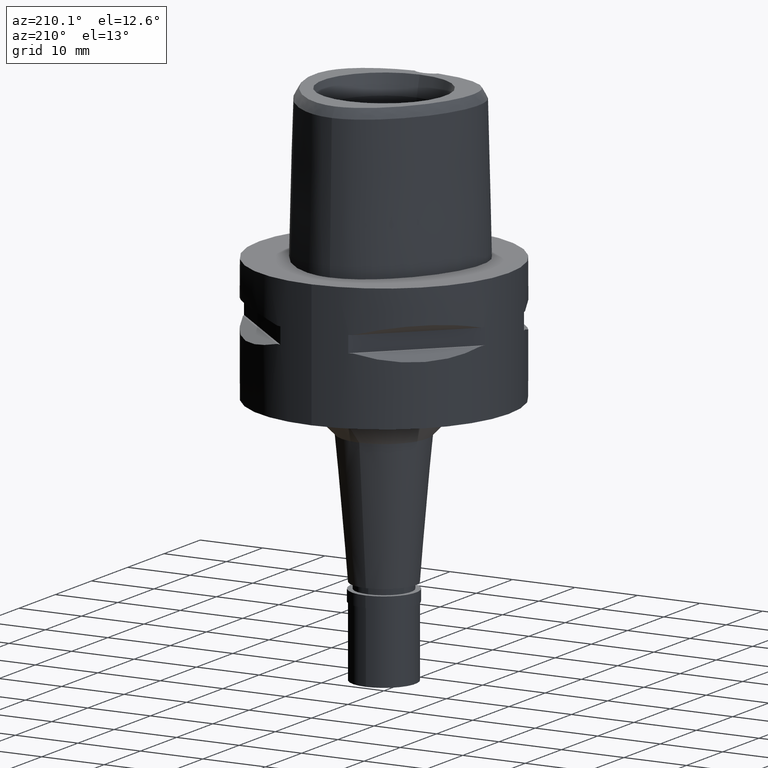
[diagram: clean part render]
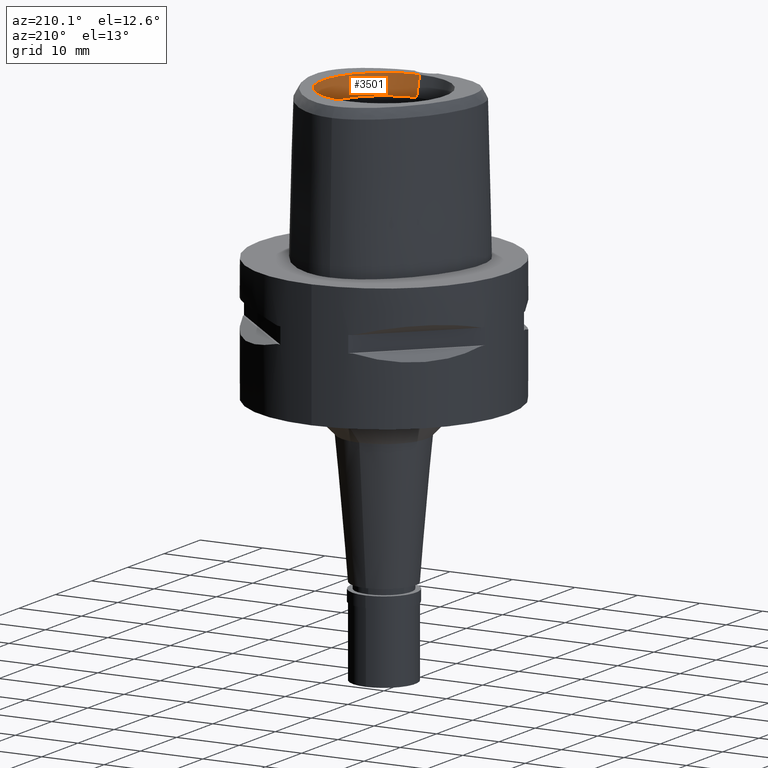
[diagram: same view with one face highlighted and labeled with its STEP entity id]
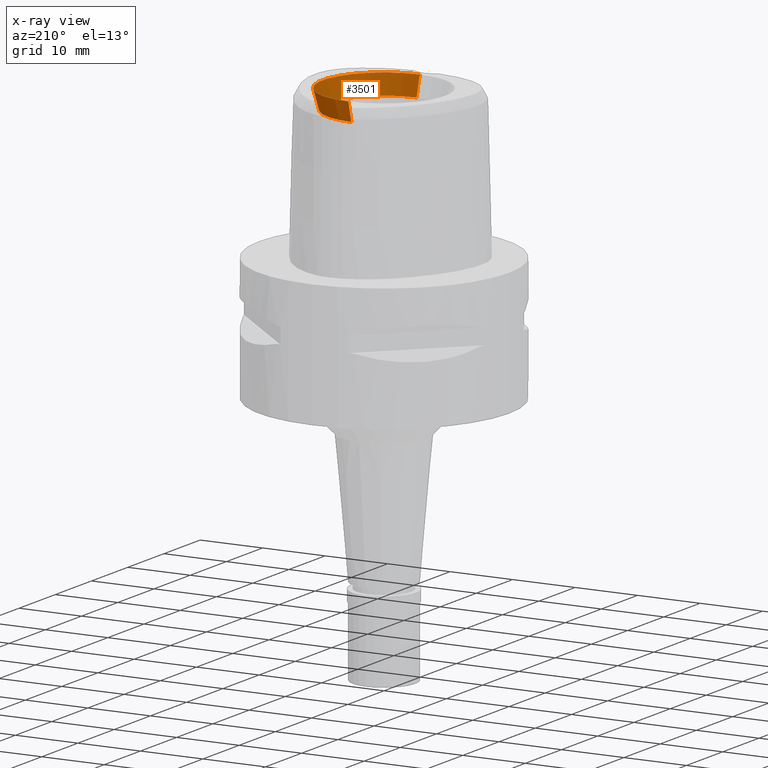
[diagram: x-ray of the same camera — body ghosted, the highlighted face saturated]
A machine part, auxiliary view. The second image highlights one B-rep face of the part: STEP entity #3501.
The next image is the same camera in x-ray: the body ghosted, the highlighted face saturated — about 0% of this face is hidden behind the body in this view.
In plain terms, the highlighted conical surface has half-angle 15 deg.
Its self-contained STEP definition (entity closure, byte-faithful):
#32 = ORIENTED_EDGE ( 'NONE', *, *, #3035, .T. ) ;
#257 = VERTEX_POINT ( 'NONE', #508 ) ;
#414 = DIRECTION ( 'NONE',  ( 0.0000000000000000000, 1.000000000000000000, 0.0000000000000000000 ) ) ;
#428 = EDGE_CURVE ( 'NONE', #3384, #4082, #1418, .T. ) ;
#504 = VERTEX_POINT ( 'NONE', #3888 ) ;
#508 = CARTESIAN_POINT ( 'NONE',  ( 0.0000000000000000000, -9.830642496535999086, 24.00000000000000000 ) ) ;
#534 = CARTESIAN_POINT ( 'NONE',  ( 0.0000000000000000000, 9.830642496535999086, 24.00000000000000000 ) ) ;
#760 = FACE_OUTER_BOUND ( 'NONE', #3490, .T. ) ;
#1019 = DIRECTION ( 'NONE',  ( 0.0000000000000000000, 0.0000000000000000000, 1.000000000000000000 ) ) ;
#1136 = AXIS2_PLACEMENT_3D ( 'NONE', #1527, #3573, #414 ) ;
#1407 = DIRECTION ( 'NONE',  ( 0.0000000000000000000, -1.000000000000000000, 0.0000000000000000000 ) ) ;
#1418 = LINE ( 'NONE', #1764, #3730 ) ;
#1424 = EDGE_CURVE ( 'NONE', #257, #4082, #3815, .T. ) ;
#1527 = CARTESIAN_POINT ( 'NONE',  ( 0.0000000000000000000, 1.499580005555999857E-14, 22.45000000000000284 ) ) ;
#1764 = CARTESIAN_POINT ( 'NONE',  ( 0.0000000000000000000, 9.000000000000000000, 20.89999999999999858 ) ) ;
#1866 = LINE ( 'NONE', #3545, #2772 ) ;
#2272 = ORIENTED_EDGE ( 'NONE', *, *, #1424, .T. ) ;
#2320 = AXIS2_PLACEMENT_3D ( 'NONE', #2778, #4240, #2383 ) ;
#2383 = DIRECTION ( 'NONE',  ( 0.0000000000000000000, -1.000000000000000000, 0.0000000000000000000 ) ) ;
#2465 = CIRCLE ( 'NONE', #2320, 9.000000000000000000 ) ;
#2544 = AXIS2_PLACEMENT_3D ( 'NONE', #4589, #1019, #1407 ) ;
#2546 = ORIENTED_EDGE ( 'NONE', *, *, #3829, .F. ) ;
#2664 = ORIENTED_EDGE ( 'NONE', *, *, #428, .F. ) ;
#2772 = VECTOR ( 'NONE', #3288, 1000.000000000000227 ) ;
#2778 = CARTESIAN_POINT ( 'NONE',  ( 0.0000000000000000000, 1.499580005555999857E-14, 20.89999999999999858 ) ) ;
#2826 = DIRECTION ( 'NONE',  ( 0.0000000000000000000, 0.2588190451024934280, 0.9659258262890755287 ) ) ;
#3035 = EDGE_CURVE ( 'NONE', #504, #257, #1866, .T. ) ;
#3288 = DIRECTION ( 'NONE',  ( 0.0000000000000000000, -0.2588190451024934280, 0.9659258262890755287 ) ) ;
#3384 = VERTEX_POINT ( 'NONE', #3945 ) ;
#3490 = EDGE_LOOP ( 'NONE', ( #2664, #2546, #32, #2272 ) ) ;
#3501 = ADVANCED_FACE ( 'NONE', ( #760 ), #3886, .F. ) ;
#3545 = CARTESIAN_POINT ( 'NONE',  ( 0.0000000000000000000, -9.000000000000000000, 20.89999999999999858 ) ) ;
#3573 = DIRECTION ( 'NONE',  ( 0.0000000000000000000, 0.0000000000000000000, 1.000000000000000000 ) ) ;
#3730 = VECTOR ( 'NONE', #2826, 1000.000000000000227 ) ;
#3815 = CIRCLE ( 'NONE', #2544, 9.830642496535999086 ) ;
#3829 = EDGE_CURVE ( 'NONE', #504, #3384, #2465, .T. ) ;
#3886 = CONICAL_SURFACE ( 'NONE', #1136, 9.415321248268000431, 0.2617993877991000029 ) ;
#3888 = CARTESIAN_POINT ( 'NONE',  ( 0.0000000000000000000, -9.000000000000000000, 20.89999999999999858 ) ) ;
#3945 = CARTESIAN_POINT ( 'NONE',  ( 0.0000000000000000000, 9.000000000000000000, 20.89999999999999858 ) ) ;
#4082 = VERTEX_POINT ( 'NONE', #534 ) ;
#4240 = DIRECTION ( 'NONE',  ( 0.0000000000000000000, 0.0000000000000000000, 1.000000000000000000 ) ) ;
#4589 = CARTESIAN_POINT ( 'NONE',  ( 0.0000000000000000000, 1.499580005555999857E-14, 24.00000000000000000 ) ) ;